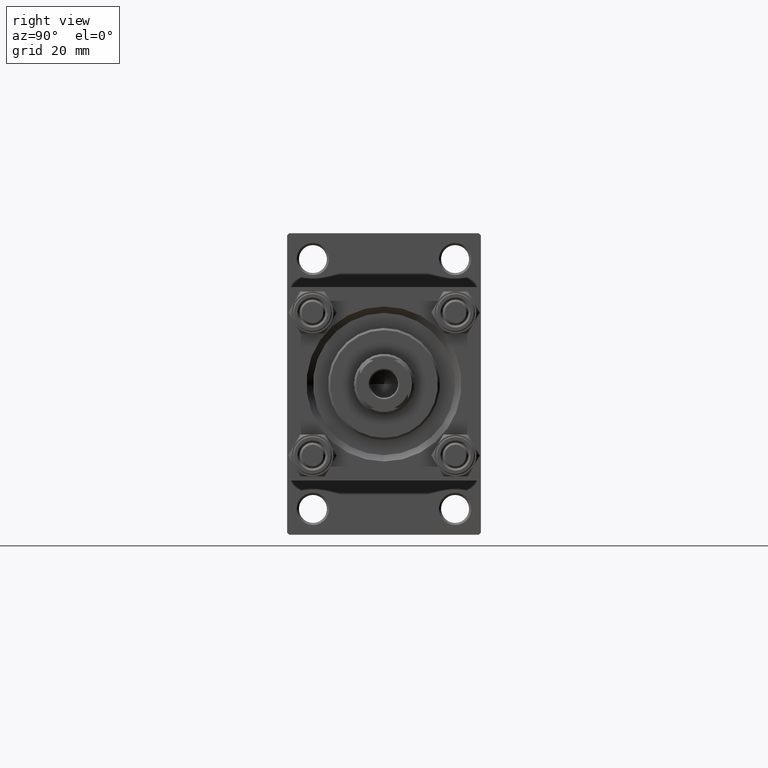
[diagram: clean part render]
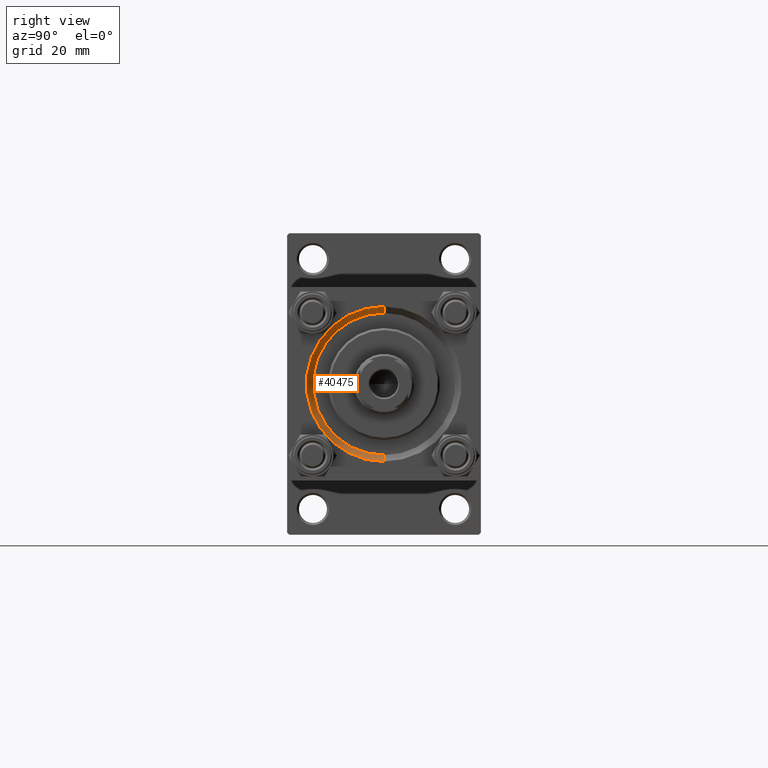
[diagram: same view with one face highlighted and labeled with its STEP entity id]
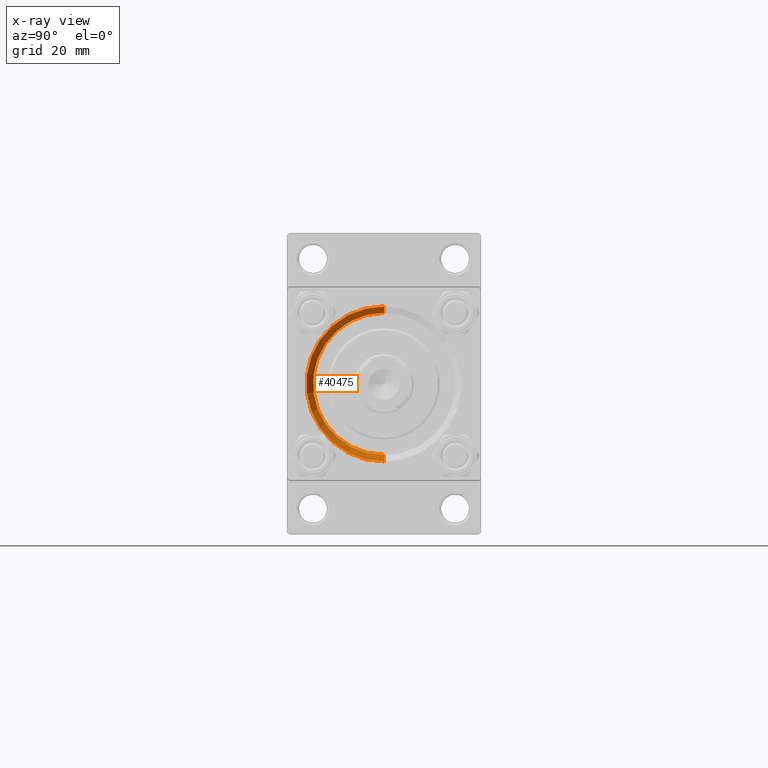
[diagram: x-ray of the same camera — body ghosted, the highlighted face saturated]
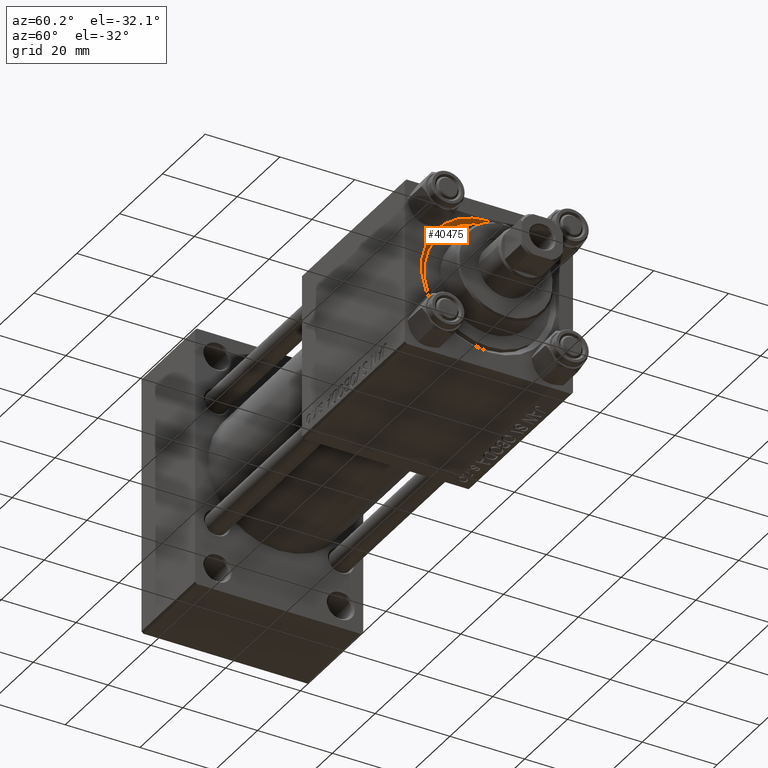
[diagram: same view with one face highlighted and labeled with its STEP entity id]
A machine part, right view. The second image highlights one B-rep face of the part: STEP entity #40475.
The next image is the same camera in x-ray: the body ghosted, the highlighted face saturated — about 0% of this face is hidden behind the body in this view.
A second angle (auxiliary view) of the same face is appended — the face is thin or edge-on in the first view.
In plain terms, the highlighted conical surface has half-angle 45 deg.
Its self-contained STEP definition (entity closure, byte-faithful):
#1177 = VECTOR ( 'NONE', #6065, 1000.000000000000114 ) ;
#3014 = LINE ( 'NONE', #10343, #1177 ) ;
#3261 = ORIENTED_EDGE ( 'NONE', *, *, #22872, .T. ) ;
#3525 = VERTEX_POINT ( 'NONE', #20905 ) ;
#4862 = CARTESIAN_POINT ( 'NONE',  ( 121.5000000000000000, 2.020667218593133100E-15, 16.50000000000000000 ) ) ;
#5636 = VERTEX_POINT ( 'NONE', #4862 ) ;
#6064 = CARTESIAN_POINT ( 'NONE',  ( 121.5000000000000000, 0.000000000000000000, 0.000000000000000000 ) ) ;
#6065 = DIRECTION ( 'NONE',  ( 0.7071067811865507924, 0.000000000000000000, -0.7071067811865441310 ) ) ;
#6907 = CARTESIAN_POINT ( 'NONE',  ( 123.0000000000000142, 2.204364238465235822E-15, 18.00000000000000355 ) ) ;
#7094 = DIRECTION ( 'NONE',  ( 0.000000000000000000, 0.000000000000000000, -1.000000000000000000 ) ) ;
#7637 = CONICAL_SURFACE ( 'NONE', #40659, 16.50000000000000000, 0.7853981633974437271 ) ;
#10343 = CARTESIAN_POINT ( 'NONE',  ( 121.5000000000000000, 0.000000000000000000, -16.50000000000000000 ) ) ;
#10977 = AXIS2_PLACEMENT_3D ( 'NONE', #49726, #11320, #23674 ) ;
#11320 = DIRECTION ( 'NONE',  ( -1.000000000000000000, 0.000000000000000000, -0.000000000000000000 ) ) ;
#12663 = CIRCLE ( 'NONE', #40882, 16.50000000000000000 ) ;
#13498 = DIRECTION ( 'NONE',  ( 0.7071067811865507924, 8.659560562354892183E-17, 0.7071067811865441310 ) ) ;
#14195 = CIRCLE ( 'NONE', #10977, 18.00000000000000355 ) ;
#15487 = EDGE_CURVE ( 'NONE', #22828, #24629, #14195, .T. ) ;
#16293 = CARTESIAN_POINT ( 'NONE',  ( 123.0000000000000142, 0.000000000000000000, -18.00000000000000355 ) ) ;
#16342 = ORIENTED_EDGE ( 'NONE', *, *, #41334, .F. ) ;
#16790 = CARTESIAN_POINT ( 'NONE',  ( 121.5000000000000000, 2.020667218593133100E-15, 16.50000000000000000 ) ) ;
#18636 = EDGE_CURVE ( 'NONE', #5636, #3525, #12663, .T. ) ;
#19263 = VECTOR ( 'NONE', #13498, 1000.000000000000114 ) ;
#20299 = ORIENTED_EDGE ( 'NONE', *, *, #18636, .F. ) ;
#20905 = CARTESIAN_POINT ( 'NONE',  ( 121.5000000000000000, 0.000000000000000000, -16.50000000000000000 ) ) ;
#21937 = DIRECTION ( 'NONE',  ( 0.000000000000000000, 0.000000000000000000, 1.000000000000000000 ) ) ;
#22828 = VERTEX_POINT ( 'NONE', #16293 ) ;
#22872 = EDGE_CURVE ( 'NONE', #5636, #24629, #28903, .T. ) ;
#23655 = ORIENTED_EDGE ( 'NONE', *, *, #15487, .F. ) ;
#23674 = DIRECTION ( 'NONE',  ( 0.000000000000000000, 0.000000000000000000, 1.000000000000000000 ) ) ;
#24629 = VERTEX_POINT ( 'NONE', #6907 ) ;
#25509 = EDGE_LOOP ( 'NONE', ( #20299, #3261, #23655, #16342 ) ) ;
#26254 = FACE_OUTER_BOUND ( 'NONE', #25509, .T. ) ;
#28903 = LINE ( 'NONE', #16790, #19263 ) ;
#38138 = CARTESIAN_POINT ( 'NONE',  ( 121.5000000000000000, 0.000000000000000000, 0.000000000000000000 ) ) ;
#40475 = ADVANCED_FACE ( 'NONE', ( #26254 ), #7637, .F. ) ;
#40659 = AXIS2_PLACEMENT_3D ( 'NONE', #38138, #41937, #7094 ) ;
#40882 = AXIS2_PLACEMENT_3D ( 'NONE', #6064, #48487, #21937 ) ;
#41334 = EDGE_CURVE ( 'NONE', #3525, #22828, #3014, .T. ) ;
#41937 = DIRECTION ( 'NONE',  ( 1.000000000000000000, 0.000000000000000000, 0.000000000000000000 ) ) ;
#48487 = DIRECTION ( 'NONE',  ( 1.000000000000000000, 0.000000000000000000, 0.000000000000000000 ) ) ;
#49726 = CARTESIAN_POINT ( 'NONE',  ( 123.0000000000000142, 0.000000000000000000, 0.000000000000000000 ) ) ;